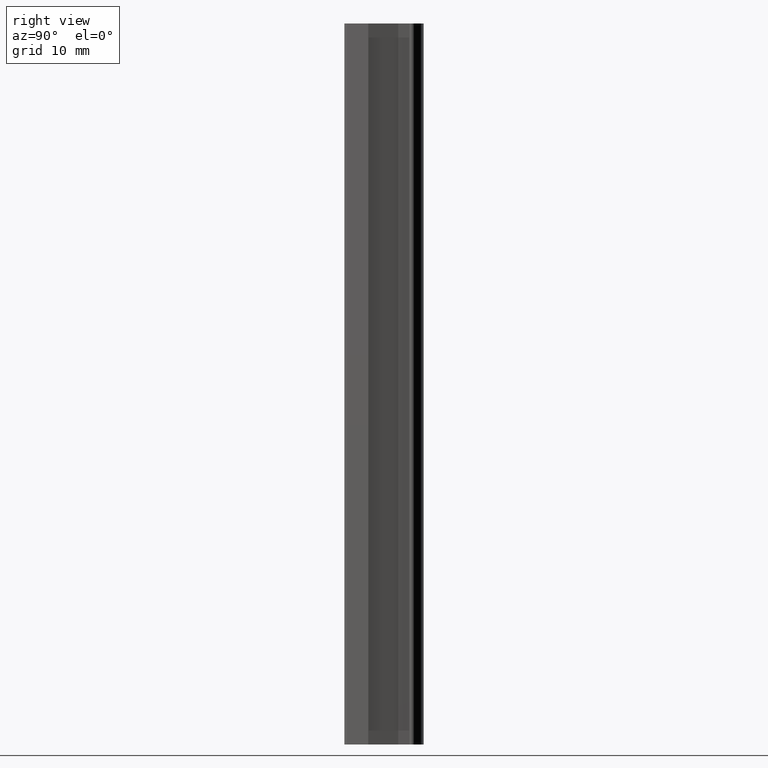
[diagram: clean part render]
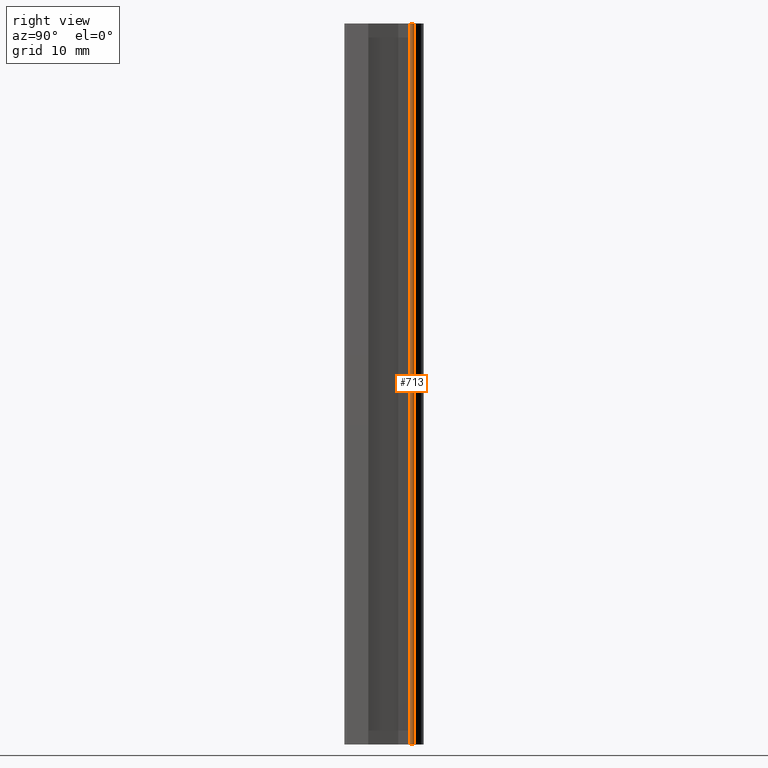
[diagram: same view with one face highlighted and labeled with its STEP entity id]
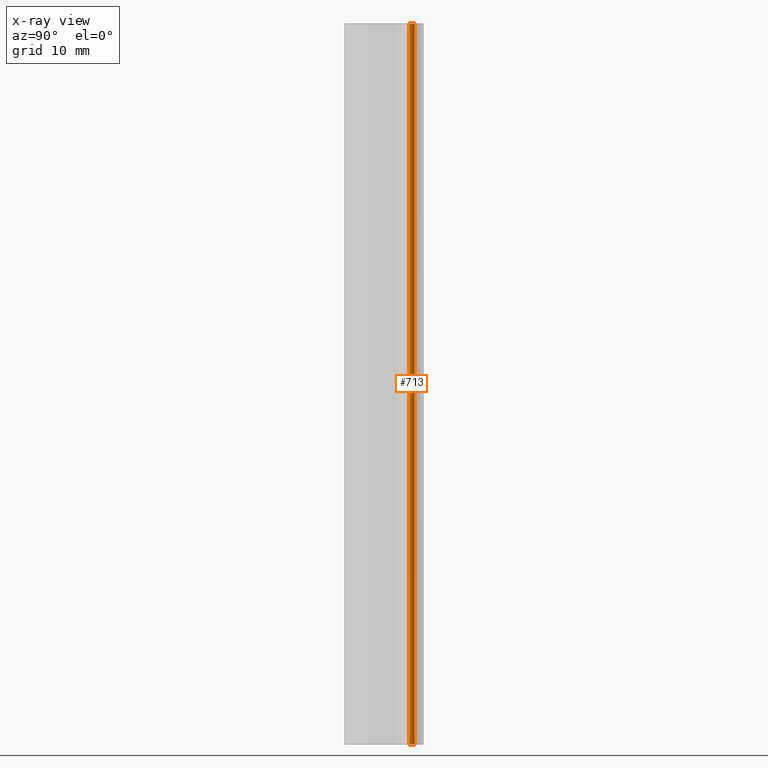
[diagram: x-ray of the same camera — body ghosted, the highlighted face saturated]
A machine part, right view. The second image highlights one B-rep face of the part: STEP entity #713.
The next image is the same camera in x-ray: the body ghosted, the highlighted face saturated — about 0% of this face is hidden behind the body in this view.
In plain terms, the highlighted cylindrical surface (edge-blend (fillet) strip) has radius 0.4 mm, axis along (0, 0, 1).
Its self-contained STEP definition (entity closure, byte-faithful):
#140=CIRCLE('',#778,0.4);
#141=CIRCLE('',#779,0.4);
#169=CYLINDRICAL_SURFACE('',#777,0.4);
#192=FACE_OUTER_BOUND('',#222,.T.);
#222=EDGE_LOOP('',(#587,#588,#589,#590));
#280=LINE('',#1137,#346);
#281=LINE('',#1143,#347);
#346=VECTOR('',#929,10.);
#347=VECTOR('',#936,10.);
#405=VERTEX_POINT('',#1133);
#406=VERTEX_POINT('',#1135);
#407=VERTEX_POINT('',#1139);
#408=VERTEX_POINT('',#1141);
#482=EDGE_CURVE('',#405,#406,#280,.T.);
#483=EDGE_CURVE('',#407,#405,#140,.T.);
#484=EDGE_CURVE('',#408,#406,#141,.T.);
#485=EDGE_CURVE('',#407,#408,#281,.T.);
#587=ORIENTED_EDGE('',*,*,#483,.T.);
#588=ORIENTED_EDGE('',*,*,#482,.T.);
#589=ORIENTED_EDGE('',*,*,#484,.F.);
#590=ORIENTED_EDGE('',*,*,#485,.F.);
#713=ADVANCED_FACE('',(#192),#169,.T.);
#777=AXIS2_PLACEMENT_3D('',#1138,#930,#931);
#778=AXIS2_PLACEMENT_3D('',#1140,#932,#933);
#779=AXIS2_PLACEMENT_3D('',#1142,#934,#935);
#929=DIRECTION('',(0.,0.,1.));
#930=DIRECTION('center_axis',(0.,0.,1.));
#931=DIRECTION('ref_axis',(0.,-1.,0.));
#932=DIRECTION('center_axis',(0.,0.,1.));
#933=DIRECTION('ref_axis',(0.,-1.,0.));
#934=DIRECTION('center_axis',(0.,0.,1.));
#935=DIRECTION('ref_axis',(0.,-1.,0.));
#936=DIRECTION('',(0.,0.,1.));
#1133=CARTESIAN_POINT('',(6.38284270496288,4.17725046940578,0.));
#1135=CARTESIAN_POINT('',(6.38284270496288,4.17725046940578,100.));
#1137=CARTESIAN_POINT('',(6.38284270496288,4.17725046940578,0.));
#1138=CARTESIAN_POINT('Origin',(6.1,3.89440774941942,0.));
#1139=CARTESIAN_POINT('',(6.1,3.49440774941943,0.));
#1140=CARTESIAN_POINT('Origin',(6.1,3.89440774941942,0.));
#1141=CARTESIAN_POINT('',(6.1,3.49440774941943,100.));
#1142=CARTESIAN_POINT('Origin',(6.1,3.89440774941942,100.));
#1143=CARTESIAN_POINT('',(6.1,3.49440774941943,0.));